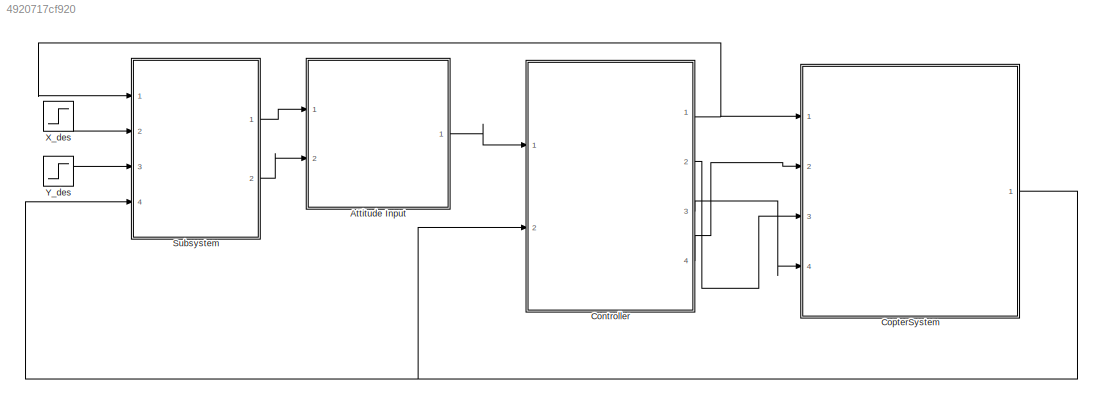
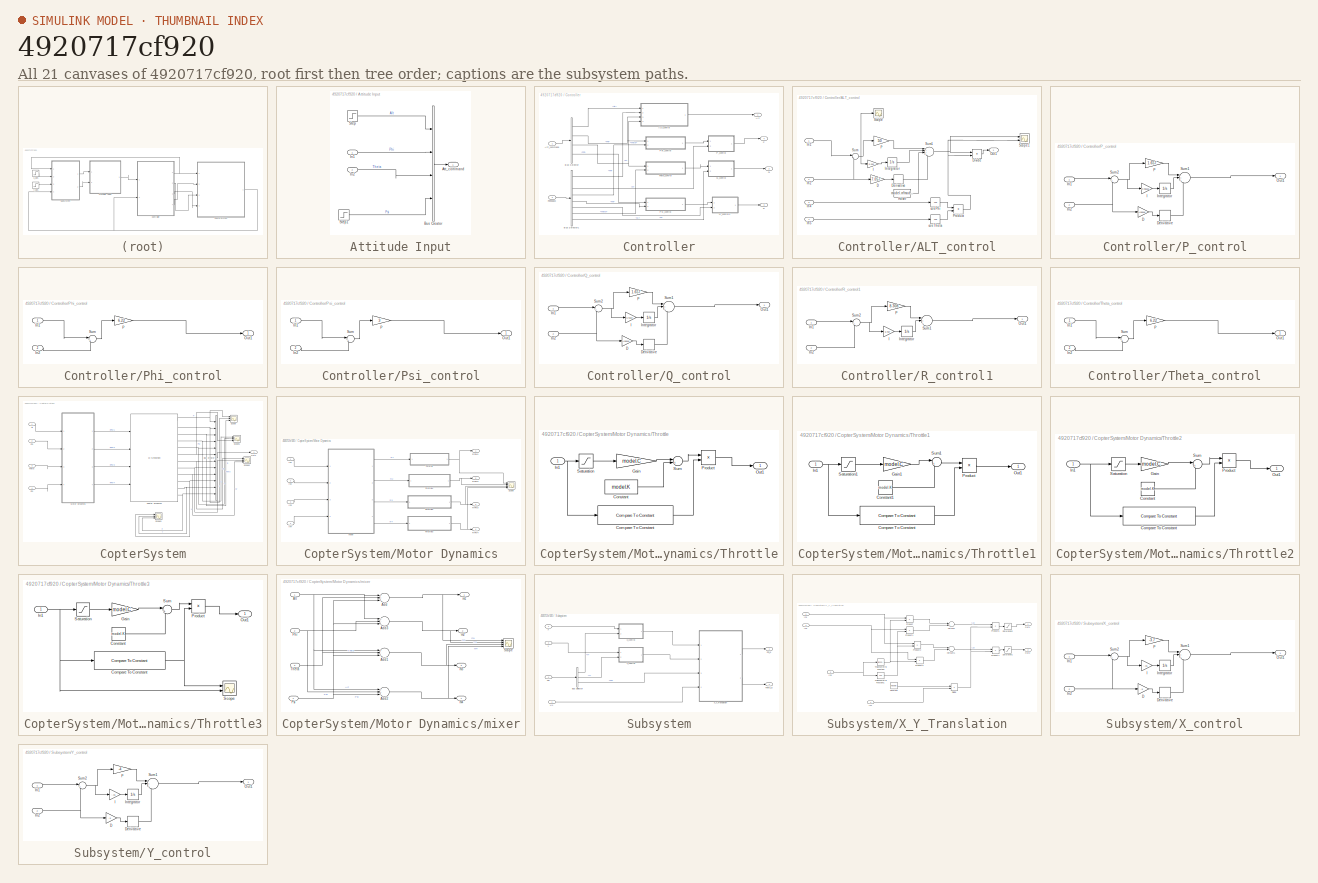
[diagram: thumbnail index - all 21 canvases of the model, root first then tree order]
MODEL slx_4920717cf920
KIND model
WORKSPACE source: MAT-file member
WORKSPACE handle: class17 (value not decoded)
BLOCK [SubSystem] Attitude Input
  FunctionWithSeparateData = off
  MaskHideContents = off
  MinAlgLoopOccurrences = off
  Opaque = off
  Ports = [2, 1]
  PropExecContextOutsideSubsystem = off
  RTWSystemCode = Auto
  RequestExecContextInheritance = off
BLOCK [Outport] Attitude Input/Att_command
  IconDisplay = Port number
BLOCK [BusCreator] Attitude Input/Bus Creator
  DisplayOption = bar
  Ports = [4, 1]
BLOCK [Inport] Attitude Input/In1
  IconDisplay = Port number
BLOCK [Inport] Attitude Input/In2
  IconDisplay = Port number
  Port = 2
BLOCK [Step] Attitude Input/Step
  After = 2.5
  Before = 2
  SampleTime = 0
  Time = 0
BLOCK [Step] Attitude Input/Step1
  After = 0
  SampleTime = 0
  Time = 0
BLOCK [SubSystem] Controller
  FunctionWithSeparateData = off
  MaskHideContents = off
  MinAlgLoopOccurrences = off
  Opaque = off
  Ports = [2, 4]
  PropExecContextOutsideSubsystem = off
  RTWSystemCode = Auto
  RequestExecContextInheritance = off
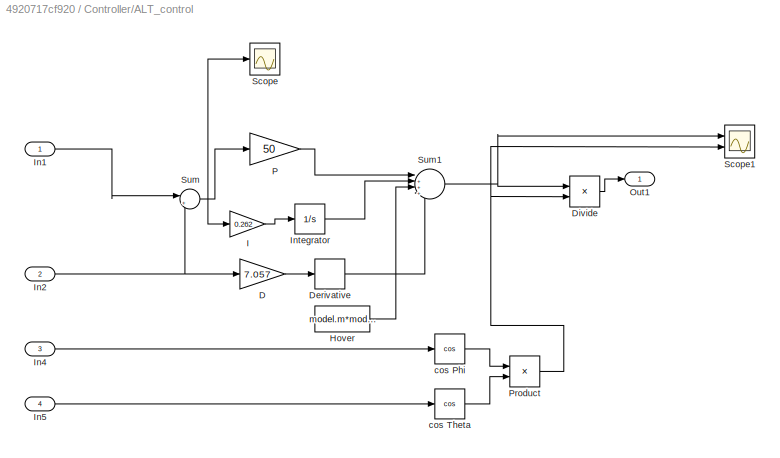
BLOCK [SubSystem] Controller/ALT_control
  FunctionWithSeparateData = off
  MaskHideContents = off
  MinAlgLoopOccurrences = off
  Opaque = off
  Ports = [4, 1]
  PropExecContextOutsideSubsystem = off
  RTWSystemCode = Auto
  RequestExecContextInheritance = off
BLOCK [Gain] Controller/ALT_control/D
  Gain = 7.057
  OutDataTypeStr = Inherit: Inherit via internal rule
  ParamDataTypeStr = Inherit: Inherit via internal rule
  SaturateOnIntegerOverflow = off
BLOCK [Derivative] Controller/ALT_control/Derivative
BLOCK [Product] Controller/ALT_control/Divide
  InputSameDT = off
  Inputs = */
  OutDataTypeStr = Inherit: Inherit via internal rule
  Ports = [2, 1]
  RndMeth = Floor
  SaturateOnIntegerOverflow = off
BLOCK [Constant] Controller/ALT_control/Hover
  Value = model.m*model.g
BLOCK [Gain] Controller/ALT_control/I
  Gain = 0.262
  OutDataTypeStr = Inherit: Inherit via internal rule
  ParamDataTypeStr = Inherit: Inherit via internal rule
  SaturateOnIntegerOverflow = off
BLOCK [Inport] Controller/ALT_control/In1
  IconDisplay = Port number
BLOCK [Inport] Controller/ALT_control/In2
  IconDisplay = Port number
  Port = 2
BLOCK [Inport] Controller/ALT_control/In4
  IconDisplay = Port number
  Port = 3
BLOCK [Inport] Controller/ALT_control/In5
  IconDisplay = Port number
  Port = 4
BLOCK [Integrator] Controller/ALT_control/Integrator
  LimitOutput = on
  LowerSaturationLimit = -1
  Ports = [1, 1]
  UpperSaturationLimit = 1
BLOCK [Outport] Controller/ALT_control/Out1
  IconDisplay = Port number
BLOCK [Gain] Controller/ALT_control/P
  Gain = 50
  OutDataTypeStr = Inherit: Inherit via internal rule
  ParamDataTypeStr = Inherit: Inherit via internal rule
  SaturateOnIntegerOverflow = off
BLOCK [Product] Controller/ALT_control/Product
  InputSameDT = off
  OutDataTypeStr = Inherit: Inherit via internal rule
  Ports = [2, 1]
  SaturateOnIntegerOverflow = off
BLOCK [Scope] Controller/ALT_control/Scope
  DataFormat = StructureWithTime
  Floating = off
  NumInputPorts = 1
  Ports = [1]
  SampleTime = 0
  SaveName = ScopeData6
  ShowLegends = off
  YMax = 1.2
  YMin = -0.1
BLOCK [Scope] Controller/ALT_control/Scope1
  DataFormat = StructureWithTime
  Floating = off
  NumInputPorts = 2
  Ports = [2]
  SampleTime = 0
  SaveName = ScopeData8
  ShowLegends = off
  YMax = 1.2~5
  YMin = -0.1~-5
BLOCK [Sum] Controller/ALT_control/Sum
  IconShape = round
  InputSameDT = off
  Inputs = |+-
  OutDataTypeStr = Inherit: Inherit via internal rule
  Ports = [2, 1]
  SaturateOnIntegerOverflow = off
BLOCK [Sum] Controller/ALT_control/Sum1
  IconShape = round
  InputSameDT = off
  Inputs = |+++-
  OutDataTypeStr = Inherit: Inherit via internal rule
  Ports = [4, 1]
  SaturateOnIntegerOverflow = off
BLOCK [Trigonometry] Controller/ALT_control/cos Phi
  Operator = cos
  Ports = [1, 1]
BLOCK [Trigonometry] Controller/ALT_control/cos Theta
  Operator = cos
  Ports = [1, 1]
BLOCK [Outport] Controller/Alt 
  IconDisplay = Port number
BLOCK [Inport] Controller/Att_command
  IconDisplay = Port number
BLOCK [BusSelector] Controller/Bus Selector
  OutputSignals = Alt,Phi,Theta,Psi
  Ports = [1, 4]
BLOCK [BusSelector] Controller/Bus Selector1
  OutputSignals = Z,W,P,Phi,Psi,R,Theta,Q
  Ports = [1, 8]
BLOCK [Inport] Controller/Feedback
  IconDisplay = Port number
  Port = 2
BLOCK [Outport] Controller/P 
  IconDisplay = Port number
  Port = 4
BLOCK [SubSystem] Controller/P_control
  FunctionWithSeparateData = off
  MaskHideContents = off
  MinAlgLoopOccurrences = off
  Opaque = off
  Ports = [2, 1]
  PropExecContextOutsideSubsystem = off
  RTWSystemCode = Auto
  RequestExecContextInheritance = off
BLOCK [Gain] Controller/P_control/D
  Gain = 0.03016
  OutDataTypeStr = Inherit: Inherit via internal rule
  ParamDataTypeStr = Inherit: Inherit via internal rule
  SaturateOnIntegerOverflow = off
BLOCK [Derivative] Controller/P_control/Derivative
BLOCK [Gain] Controller/P_control/I
  Gain = 0.06616
  OutDataTypeStr = Inherit: Inherit via internal rule
  ParamDataTypeStr = Inherit: Inherit via internal rule
  SaturateOnIntegerOverflow = off
BLOCK [Inport] Controller/P_control/In1
  IconDisplay = Port number
BLOCK [Inport] Controller/P_control/In2
  IconDisplay = Port number
  Port = 2
BLOCK [Integrator] Controller/P_control/Integrator
  LimitOutput = on
  LowerSaturationLimit = -1
  Ports = [1, 1]
  UpperSaturationLimit = 1
BLOCK [Outport] Controller/P_control/Out1
  IconDisplay = Port number
BLOCK [Gain] Controller/P_control/P
  Gain = 1.657
  OutDataTypeStr = Inherit: Inherit via internal rule
  ParamDataTypeStr = Inherit: Inherit via internal rule
  SaturateOnIntegerOverflow = off
BLOCK [Sum] Controller/P_control/Sum1
  IconShape = round
  InputSameDT = off
  Inputs = |++-
  OutDataTypeStr = Inherit: Inherit via internal rule
  Ports = [3, 1]
  SaturateOnIntegerOverflow = off
BLOCK [Sum] Controller/P_control/Sum2
  IconShape = round
  InputSameDT = off
  Inputs = |+-
  OutDataTypeStr = Inherit: Inherit via internal rule
  Ports = [2, 1]
  SaturateOnIntegerOverflow = off
BLOCK [SubSystem] Controller/Phi_control
  FunctionWithSeparateData = off
  MaskHideContents = off
  MinAlgLoopOccurrences = off
  Opaque = off
  Ports = [2, 1]
  PropExecContextOutsideSubsystem = off
  RTWSystemCode = Auto
  RequestExecContextInheritance = off
BLOCK [Inport] Controller/Phi_control/In1
  IconDisplay = Port number
BLOCK [Inport] Controller/Phi_control/In2
  IconDisplay = Port number
  Port = 2
BLOCK [Outport] Controller/Phi_control/Out1
  IconDisplay = Port number
BLOCK [Gain] Controller/Phi_control/P
  Gain = 6.22
  OutDataTypeStr = Inherit: Inherit via internal rule
  ParamDataTypeStr = Inherit: Inherit via internal rule
  SaturateOnIntegerOverflow = off
BLOCK [Sum] Controller/Phi_control/Sum
  IconShape = round
  InputSameDT = off
  Inputs = |+-
  OutDataTypeStr = Inherit: Inherit via internal rule
  Ports = [2, 1]
  SaturateOnIntegerOverflow = off
BLOCK [SubSystem] Controller/Psi_control
  FunctionWithSeparateData = off
  MaskHideContents = off
  MinAlgLoopOccurrences = off
  Opaque = off
  Ports = [2, 1]
  PropExecContextOutsideSubsystem = off
  RTWSystemCode = Auto
  RequestExecContextInheritance = off
BLOCK [Inport] Controller/Psi_control/In1
  IconDisplay = Port number
BLOCK [Inport] Controller/Psi_control/In2
  IconDisplay = Port number
  Port = 2
BLOCK [Outport] Controller/Psi_control/Out1
  IconDisplay = Port number
BLOCK [Gain] Controller/Psi_control/P
  Gain = 3
  OutDataTypeStr = Inherit: Inherit via internal rule
  ParamDataTypeStr = Inherit: Inherit via internal rule
  SaturateOnIntegerOverflow = off
BLOCK [Sum] Controller/Psi_control/Sum
  IconShape = round
  InputSameDT = off
  Inputs = |+-
  OutDataTypeStr = Inherit: Inherit via internal rule
  Ports = [2, 1]
  SaturateOnIntegerOverflow = off
BLOCK [Outport] Controller/Q
  IconDisplay = Port number
  Port = 2
BLOCK [SubSystem] Controller/Q_control
  FunctionWithSeparateData = off
  MaskHideContents = off
  MinAlgLoopOccurrences = off
  Opaque = off
  Ports = [2, 1]
  PropExecContextOutsideSubsystem = off
  RTWSystemCode = Auto
  RequestExecContextInheritance = off
BLOCK [Gain] Controller/Q_control/D
  Gain = 0.03016
  OutDataTypeStr = Inherit: Inherit via internal rule
  ParamDataTypeStr = Inherit: Inherit via internal rule
  SaturateOnIntegerOverflow = off
BLOCK [Derivative] Controller/Q_control/Derivative
BLOCK [Gain] Controller/Q_control/I
  Gain = 0.9154
  OutDataTypeStr = Inherit: Inherit via internal rule
  ParamDataTypeStr = Inherit: Inherit via internal rule
  SaturateOnIntegerOverflow = off
BLOCK [Inport] Controller/Q_control/In1
  IconDisplay = Port number
BLOCK [Inport] Controller/Q_control/In2
  IconDisplay = Port number
  Port = 2
BLOCK [Integrator] Controller/Q_control/Integrator
  LimitOutput = on
  LowerSaturationLimit = -1
  Ports = [1, 1]
  UpperSaturationLimit = 1
BLOCK [Outport] Controller/Q_control/Out1
  IconDisplay = Port number
BLOCK [Gain] Controller/Q_control/P
  Gain = 1.657
  OutDataTypeStr = Inherit: Inherit via internal rule
  ParamDataTypeStr = Inherit: Inherit via internal rule
  SaturateOnIntegerOverflow = off
BLOCK [Sum] Controller/Q_control/Sum1
  IconShape = round
  InputSameDT = off
  Inputs = |++-
  OutDataTypeStr = Inherit: Inherit via internal rule
  Ports = [3, 1]
  SaturateOnIntegerOverflow = off
BLOCK [Sum] Controller/Q_control/Sum2
  IconShape = round
  InputSameDT = off
  Inputs = |+-
  OutDataTypeStr = Inherit: Inherit via internal rule
  Ports = [2, 1]
  SaturateOnIntegerOverflow = off
BLOCK [Outport] Controller/R
  IconDisplay = Port number
  Port = 3
BLOCK [SubSystem] Controller/R_control1
  FunctionWithSeparateData = off
  MaskHideContents = off
  MinAlgLoopOccurrences = off
  Opaque = off
  Ports = [2, 1]
  PropExecContextOutsideSubsystem = off
  RTWSystemCode = Auto
  RequestExecContextInheritance = off
BLOCK [Gain] Controller/R_control1/I
  Gain = 3.457
  OutDataTypeStr = Inherit: Inherit via internal rule
  ParamDataTypeStr = Inherit: Inherit via internal rule
  SaturateOnIntegerOverflow = off
BLOCK [Inport] Controller/R_control1/In1
  IconDisplay = Port number
BLOCK [Inport] Controller/R_control1/In2
  IconDisplay = Port number
  Port = 2
BLOCK [Integrator] Controller/R_control1/Integrator
  LimitOutput = on
  LowerSaturationLimit = -1
  Ports = [1, 1]
  UpperSaturationLimit = 1
BLOCK [Outport] Controller/R_control1/Out1
  IconDisplay = Port number
BLOCK [Gain] Controller/R_control1/P
  Gain = 8.308
  OutDataTypeStr = Inherit: Inherit via internal rule
  ParamDataTypeStr = Inherit: Inherit via internal rule
  SaturateOnIntegerOverflow = off
BLOCK [Sum] Controller/R_control1/Sum1
  IconShape = round
  InputSameDT = off
  Inputs = |++-
  OutDataTypeStr = Inherit: Inherit via internal rule
  Ports = [3, 1]
  SaturateOnIntegerOverflow = off
BLOCK [Sum] Controller/R_control1/Sum2
  IconShape = round
  InputSameDT = off
  Inputs = |+-
  OutDataTypeStr = Inherit: Inherit via internal rule
  Ports = [2, 1]
  SaturateOnIntegerOverflow = off
BLOCK [SubSystem] Controller/Theta_control
  FunctionWithSeparateData = off
  MaskHideContents = off
  MinAlgLoopOccurrences = off
  Opaque = off
  Ports = [2, 1]
  PropExecContextOutsideSubsystem = off
  RTWSystemCode = Auto
  RequestExecContextInheritance = off
BLOCK [Inport] Controller/Theta_control/In1
  IconDisplay = Port number
BLOCK [Inport] Controller/Theta_control/In2
  IconDisplay = Port number
  Port = 2
BLOCK [Outport] Controller/Theta_control/Out1
  IconDisplay = Port number
BLOCK [Gain] Controller/Theta_control/P
  Gain = 6.22
  OutDataTypeStr = Inherit: Inherit via internal rule
  ParamDataTypeStr = Inherit: Inherit via internal rule
  SaturateOnIntegerOverflow = off
BLOCK [Sum] Controller/Theta_control/Sum
  IconShape = round
  InputSameDT = off
  Inputs = |+-
  OutDataTypeStr = Inherit: Inherit via internal rule
  Ports = [2, 1]
  SaturateOnIntegerOverflow = off
BLOCK [SubSystem] CopterSystem
  FunctionWithSeparateData = off
  MaskHideContents = off
  MinAlgLoopOccurrences = off
  Opaque = off
  Ports = [4, 1]
  PropExecContextOutsideSubsystem = off
  RTWSystemCode = Auto
  RequestExecContextInheritance = off
BLOCK [Inport] CopterSystem/Alt
  IconDisplay = Port number
BLOCK [BusCreator] CopterSystem/Bus Creator
  DisplayOption = bar
  Inputs = 12
  Ports = [12, 1]
BLOCK [M-S-Function] CopterSystem/Copter Dynamics
  FunctionName = copter_dynamics
  Parameters = model
  Ports = [4, 12]
BLOCK [SubSystem] CopterSystem/Motor Dynamics
  FunctionWithSeparateData = off
  MaskHideContents = off
  MinAlgLoopOccurrences = off
  Opaque = off
  Ports = [4, 4]
  PropExecContextOutsideSubsystem = off
  RTWSystemCode = Auto
  RequestExecContextInheritance = off
BLOCK [Inport] CopterSystem/Motor Dynamics/In1
  IconDisplay = Port number
BLOCK [Inport] CopterSystem/Motor Dynamics/In2
  IconDisplay = Port number
  Port = 2
BLOCK [Inport] CopterSystem/Motor Dynamics/In3
  IconDisplay = Port number
  Port = 3
BLOCK [Inport] CopterSystem/Motor Dynamics/In4
  IconDisplay = Port number
  Port = 4
BLOCK [Outport] CopterSystem/Motor Dynamics/RPM1
  IconDisplay = Port number
BLOCK [Outport] CopterSystem/Motor Dynamics/RPM2
  IconDisplay = Port number
  Port = 2
BLOCK [Outport] CopterSystem/Motor Dynamics/RPM3
  IconDisplay = Port number
  Port = 3
BLOCK [Outport] CopterSystem/Motor Dynamics/RPM4
  IconDisplay = Port number
  Port = 4
BLOCK [Scope] CopterSystem/Motor Dynamics/Scope
  DataFormat = StructureWithTime
  Floating = off
  NumInputPorts = 4
  Ports = [4]
  SampleTime = 0
  SaveName = ScopeData5
  ShowLegends = off
  YMax = 5250~5250~5250~5250
  YMin = 2500~2500~2500~2500
BLOCK [SubSystem] CopterSystem/Motor Dynamics/Throttle
  FunctionWithSeparateData = off
  MaskHideContents = off
  MinAlgLoopOccurrences = off
  Opaque = off
  Ports = [1, 1]
  PropExecContextOutsideSubsystem = off
  RTWSystemCode = Auto
  RequestExecContextInheritance = off
BLOCK [Reference] CopterSystem/Motor Dynamics/Throttle/Compare To Constant  REF=simulink/Logic and Bit
Operations/Compare
To Constant
  OutDataTypeStr = uint8
  Ports = [1, 1]
  SourceBlock = simulink/Logic and Bit\nOperations/Compare\nTo Constant
  SourceType = Compare To Constant
  ZeroCross = off
  const = model.minThrottle
  relop = >=
BLOCK [Constant] CopterSystem/Motor Dynamics/Throttle/Constant
  Value = model.K
BLOCK [Gain] CopterSystem/Motor Dynamics/Throttle/Gain
  Gain = model.C
  OutDataTypeStr = Inherit: Inherit via internal rule
  ParamDataTypeStr = Inherit: Inherit via internal rule
  SaturateOnIntegerOverflow = off
BLOCK [Inport] CopterSystem/Motor Dynamics/Throttle/In1
  IconDisplay = Port number
BLOCK [Outport] CopterSystem/Motor Dynamics/Throttle/Out1
  IconDisplay = Port number
BLOCK [Product] CopterSystem/Motor Dynamics/Throttle/Product
  InputSameDT = off
  OutDataTypeStr = Inherit: Inherit via internal rule
  Ports = [2, 1]
  RndMeth = Floor
  SaturateOnIntegerOverflow = off
BLOCK [Saturate] CopterSystem/Motor Dynamics/Throttle/Saturation
  InputPortMap = u0
  LowerLimit = 0
  Ports = [1, 1]
  UpperLimit = 40
BLOCK [Sum] CopterSystem/Motor Dynamics/Throttle/Sum
  IconShape = round
  InputSameDT = off
  Inputs = |++
  OutDataTypeStr = Inherit: Inherit via internal rule
  Ports = [2, 1]
  SaturateOnIntegerOverflow = off
BLOCK [SubSystem] CopterSystem/Motor Dynamics/Throttle1
  FunctionWithSeparateData = off
  MaskHideContents = off
  MinAlgLoopOccurrences = off
  Opaque = off
  Ports = [1, 1]
  PropExecContextOutsideSubsystem = off
  RTWSystemCode = Auto
  RequestExecContextInheritance = off
BLOCK [Reference] CopterSystem/Motor Dynamics/Throttle1/Compare To Constant  REF=simulink/Logic and Bit
Operations/Compare
To Constant
  OutDataTypeStr = uint8
  Ports = [1, 1]
  SourceBlock = simulink/Logic and Bit\nOperations/Compare\nTo Constant
  SourceType = Compare To Constant
  ZeroCross = off
  const = model.minThrottle
  relop = >=
BLOCK [Constant] CopterSystem/Motor Dynamics/Throttle1/Constant1
  Value = model.K
BLOCK [Gain] CopterSystem/Motor Dynamics/Throttle1/Gain1
  Gain = model.C
  OutDataTypeStr = Inherit: Inherit via internal rule
  ParamDataTypeStr = Inherit: Inherit via internal rule
  SaturateOnIntegerOverflow = off
BLOCK [Inport] CopterSystem/Motor Dynamics/Throttle1/In1
  IconDisplay = Port number
BLOCK [Outport] CopterSystem/Motor Dynamics/Throttle1/Out1
  IconDisplay = Port number
BLOCK [Product] CopterSystem/Motor Dynamics/Throttle1/Product
  InputSameDT = off
  OutDataTypeStr = Inherit: Inherit via internal rule
  Ports = [2, 1]
  RndMeth = Floor
  SaturateOnIntegerOverflow = off
BLOCK [Saturate] CopterSystem/Motor Dynamics/Throttle1/Saturation1
  InputPortMap = u0
  LowerLimit = 0
  Ports = [1, 1]
  UpperLimit = 40
BLOCK [Sum] CopterSystem/Motor Dynamics/Throttle1/Sum1
  IconShape = round
  InputSameDT = off
  Inputs = |++
  OutDataTypeStr = Inherit: Inherit via internal rule
  Ports = [2, 1]
  SaturateOnIntegerOverflow = off
BLOCK [SubSystem] CopterSystem/Motor Dynamics/Throttle2
  FunctionWithSeparateData = off
  MaskHideContents = off
  MinAlgLoopOccurrences = off
  Opaque = off
  Ports = [1, 1]
  PropExecContextOutsideSubsystem = off
  RTWSystemCode = Auto
  RequestExecContextInheritance = off
BLOCK [Reference] CopterSystem/Motor Dynamics/Throttle2/Compare To Constant  REF=simulink/Logic and Bit
Operations/Compare
To Constant
  OutDataTypeStr = uint8
  Ports = [1, 1]
  SourceBlock = simulink/Logic and Bit\nOperations/Compare\nTo Constant
  SourceType = Compare To Constant
  ZeroCross = off
  const = model.minThrottle
  relop = >=
BLOCK [Constant] CopterSystem/Motor Dynamics/Throttle2/Constant
  Value = model.K
BLOCK [Gain] CopterSystem/Motor Dynamics/Throttle2/Gain
  Gain = model.C
  OutDataTypeStr = Inherit: Inherit via internal rule
  ParamDataTypeStr = Inherit: Inherit via internal rule
  SaturateOnIntegerOverflow = off
BLOCK [Inport] CopterSystem/Motor Dynamics/Throttle2/In1
  IconDisplay = Port number
BLOCK [Outport] CopterSystem/Motor Dynamics/Throttle2/Out1
  IconDisplay = Port number
BLOCK [Product] CopterSystem/Motor Dynamics/Throttle2/Product
  InputSameDT = off
  OutDataTypeStr = Inherit: Inherit via internal rule
  Ports = [2, 1]
  RndMeth = Floor
  SaturateOnIntegerOverflow = off
BLOCK [Saturate] CopterSystem/Motor Dynamics/Throttle2/Saturation
  InputPortMap = u0
  LowerLimit = 0
  Ports = [1, 1]
  UpperLimit = 40
BLOCK [Sum] CopterSystem/Motor Dynamics/Throttle2/Sum
  IconShape = round
  InputSameDT = off
  Inputs = |++
  OutDataTypeStr = Inherit: Inherit via internal rule
  Ports = [2, 1]
  SaturateOnIntegerOverflow = off
BLOCK [SubSystem] CopterSystem/Motor Dynamics/Throttle3
  FunctionWithSeparateData = off
  MaskHideContents = off
  MinAlgLoopOccurrences = off
  Opaque = off
  Ports = [1, 1]
  PropExecContextOutsideSubsystem = off
  RTWSystemCode = Auto
  RequestExecContextInheritance = off
BLOCK [Reference] CopterSystem/Motor Dynamics/Throttle3/Compare To Constant  REF=simulink/Logic and Bit
Operations/Compare
To Constant
  OutDataTypeStr = uint8
  Ports = [1, 1]
  SourceBlock = simulink/Logic and Bit\nOperations/Compare\nTo Constant
  SourceType = Compare To Constant
  ZeroCross = off
  const = model.minThrottle
  relop = >=
BLOCK [Constant] CopterSystem/Motor Dynamics/Throttle3/Constant
  Value = model.K
BLOCK [Gain] CopterSystem/Motor Dynamics/Throttle3/Gain
  Gain = model.C
  OutDataTypeStr = Inherit: Inherit via internal rule
  ParamDataTypeStr = Inherit: Inherit via internal rule
  SaturateOnIntegerOverflow = off
BLOCK [Inport] CopterSystem/Motor Dynamics/Throttle3/In1
  IconDisplay = Port number
BLOCK [Outport] CopterSystem/Motor Dynamics/Throttle3/Out1
  IconDisplay = Port number
BLOCK [Product] CopterSystem/Motor Dynamics/Throttle3/Product
  InputSameDT = off
  OutDataTypeStr = Inherit: Inherit via internal rule
  Ports = [2, 1]
  RndMeth = Floor
  SaturateOnIntegerOverflow = off
BLOCK [Saturate] CopterSystem/Motor Dynamics/Throttle3/Saturation
  InputPortMap = u0
  LowerLimit = 0
  Ports = [1, 1]
  UpperLimit = 40
BLOCK [Scope] CopterSystem/Motor Dynamics/Throttle3/Scope
  DataFormat = StructureWithTime
  Floating = off
  NumInputPorts = 2
  Ports = [2]
  SampleTime = 0
  SaveName = ScopeData4
  ShowLegends = off
  YMax = 5~5
  YMin = -5~-5
BLOCK [Sum] CopterSystem/Motor Dynamics/Throttle3/Sum
  IconShape = round
  InputSameDT = off
  Inputs = |++
  OutDataTypeStr = Inherit: Inherit via internal rule
  Ports = [2, 1]
  SaturateOnIntegerOverflow = off
BLOCK [SubSystem] CopterSystem/Motor Dynamics/mixer
  FunctionWithSeparateData = off
  MaskHideContents = off
  MinAlgLoopOccurrences = off
  Opaque = off
  Ports = [4, 4]
  PropExecContextOutsideSubsystem = off
  RTWSystemCode = Auto
  RequestExecContextInheritance = off
BLOCK [Sum] CopterSystem/Motor Dynamics/mixer/Add
  InputSameDT = off
  Inputs = +++
  OutDataTypeStr = Inherit: Inherit via internal rule
  Ports = [3, 1]
  SaturateOnIntegerOverflow = off
BLOCK [Sum] CopterSystem/Motor Dynamics/mixer/Add1
  InputSameDT = off
  Inputs = +-+
  OutDataTypeStr = Inherit: Inherit via internal rule
  Ports = [3, 1]
  SaturateOnIntegerOverflow = off
BLOCK [Sum] CopterSystem/Motor Dynamics/mixer/Add2
  InputSameDT = off
  Inputs = ++-
  OutDataTypeStr = Inherit: Inherit via internal rule
  Ports = [3, 1]
  SaturateOnIntegerOverflow = off
BLOCK [Sum] CopterSystem/Motor Dynamics/mixer/Add3
  InputSameDT = off
  Inputs = +--
  OutDataTypeStr = Inherit: Inherit via internal rule
  Ports = [3, 1]
  SaturateOnIntegerOverflow = off
BLOCK [Inport] CopterSystem/Motor Dynamics/mixer/Alt
  IconDisplay = Port number
BLOCK [Inport] CopterSystem/Motor Dynamics/mixer/Phi
  IconDisplay = Port number
  Port = 2
BLOCK [Inport] CopterSystem/Motor Dynamics/mixer/Psi
  IconDisplay = Port number
  Port = 4
BLOCK [Scope] CopterSystem/Motor Dynamics/mixer/Scope
  DataFormat = StructureWithTime
  Floating = off
  NumInputPorts = 4
  Ports = [4]
  SampleTime = 0
  SaveName = ScopeData9
  ShowLegends = off
  YMax = 5~5~5~5
  YMin = -5~-5~-5~-5
BLOCK [Inport] CopterSystem/Motor Dynamics/mixer/Theta
  IconDisplay = Port number
  Port = 3
BLOCK [Outport] CopterSystem/Motor Dynamics/mixer/m1
  IconDisplay = Port number
BLOCK [Outport] CopterSystem/Motor Dynamics/mixer/m2
  IconDisplay = Port number
  Port = 2
BLOCK [Outport] CopterSystem/Motor Dynamics/mixer/m3
  IconDisplay = Port number
  Port = 3
BLOCK [Outport] CopterSystem/Motor Dynamics/mixer/m4
  IconDisplay = Port number
  Port = 4
BLOCK [Outport] CopterSystem/Out1
  IconDisplay = Port number
BLOCK [Inport] CopterSystem/Phi
  IconDisplay = Port number
  Port = 2
BLOCK [Inport] CopterSystem/Psi
  IconDisplay = Port number
  Port = 4
BLOCK [Scope] CopterSystem/Scope
  DataFormat = StructureWithTime
  Floating = off
  NumInputPorts = 3
  Ports = [3]
  SampleTime = 0
  ShowLegends = off
  YMax = 750~750~-11010
  YMin = -750~-750~-11050
BLOCK [Scope] CopterSystem/Scope1
  DataFormat = StructureWithTime
  Floating = off
  NumInputPorts = 3
  Ports = [3]
  SampleTime = 0
  SaveName = ScopeData1
  ShowLegends = off
  YMax = 0.07~0.35~-0.009
  YMin = -0.06~-0.35~-0.027
BLOCK [Scope] CopterSystem/Scope2
  DataFormat = StructureWithTime
  Floating = off
  NumInputPorts = 3
  Ports = [3]
  SampleTime = 0
  SaveName = ScopeData2
  ShowLegends = off
  YMax = 400~400~2700
  YMin = -400~-350~2630
BLOCK [Scope] CopterSystem/Scope3
  DataFormat = StructureWithTime
  Floating = off
  NumInputPorts = 3
  Ports = [3]
  SampleTime = 0
  SaveName = ScopeData3
  ShowLegends = off
  YMax = 1.0028~8.8e-07~2.50026
  YMin = 1.0018~7.3e-07~2.50025
BLOCK [Inport] CopterSystem/Theta
  IconDisplay = Port number
  Port = 3
BLOCK [SubSystem] Subsystem
  FunctionWithSeparateData = off
  MaskHideContents = off
  MinAlgLoopOccurrences = off
  Opaque = off
  Ports = [4, 2]
  PropExecContextOutsideSubsystem = off
  RTWSystemCode = Auto
  RequestExecContextInheritance = off
BLOCK [BusSelector] Subsystem/Bus Selector
  OutputSignals = X,Y,Psi
  Ports = [1, 3]
BLOCK [Outport] Subsystem/Phi_d
  IconDisplay = Port number
BLOCK [Inport] Subsystem/Psi
  IconDisplay = Port number
  Port = 4
BLOCK [Outport] Subsystem/Theta_d
  IconDisplay = Port number
  Port = 2
BLOCK [Inport] Subsystem/U1
  IconDisplay = Port number
BLOCK [Inport] Subsystem/X
  IconDisplay = Port number
  Port = 2
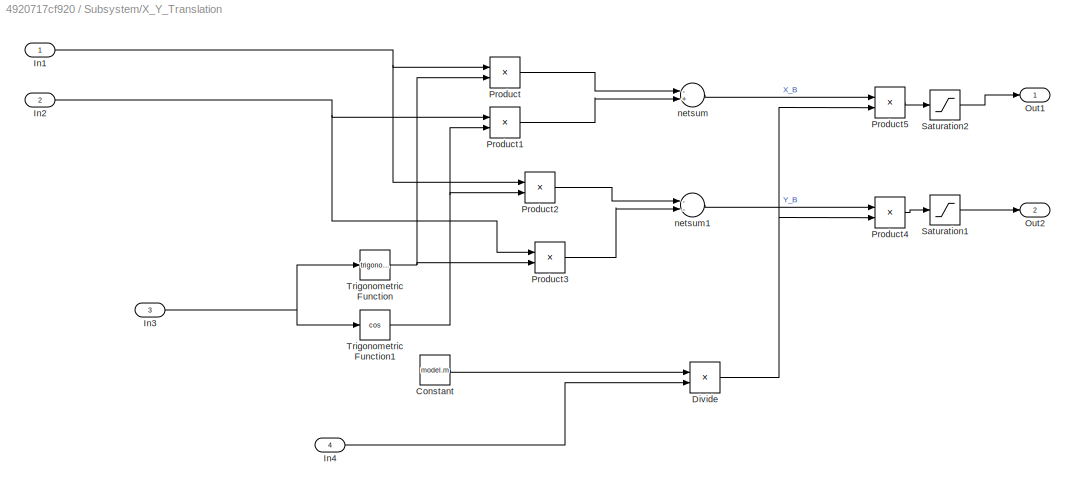
BLOCK [SubSystem] Subsystem/X_Y_Translation
  FunctionWithSeparateData = off
  MaskHideContents = off
  MinAlgLoopOccurrences = off
  Opaque = off
  Ports = [4, 2]
  PropExecContextOutsideSubsystem = off
  RTWSystemCode = Auto
  RequestExecContextInheritance = off
BLOCK [Constant] Subsystem/X_Y_Translation/Constant
  Value = model.m
BLOCK [Product] Subsystem/X_Y_Translation/Divide
  InputSameDT = off
  Inputs = */
  OutDataTypeStr = Inherit: Inherit via internal rule
  Ports = [2, 1]
  RndMeth = Floor
  SaturateOnIntegerOverflow = off
BLOCK [Inport] Subsystem/X_Y_Translation/In1
  IconDisplay = Port number
BLOCK [Inport] Subsystem/X_Y_Translation/In2
  IconDisplay = Port number
  Port = 2
BLOCK [Inport] Subsystem/X_Y_Translation/In3
  IconDisplay = Port number
  Port = 3
BLOCK [Inport] Subsystem/X_Y_Translation/In4
  IconDisplay = Port number
  Port = 4
BLOCK [Outport] Subsystem/X_Y_Translation/Out1
  IconDisplay = Port number
BLOCK [Outport] Subsystem/X_Y_Translation/Out2
  IconDisplay = Port number
  Port = 2
BLOCK [Product] Subsystem/X_Y_Translation/Product
  InputSameDT = off
  OutDataTypeStr = Inherit: Inherit via internal rule
  Ports = [2, 1]
  RndMeth = Floor
  SaturateOnIntegerOverflow = off
BLOCK [Product] Subsystem/X_Y_Translation/Product1
  InputSameDT = off
  OutDataTypeStr = Inherit: Inherit via internal rule
  Ports = [2, 1]
  RndMeth = Floor
  SaturateOnIntegerOverflow = off
BLOCK [Product] Subsystem/X_Y_Translation/Product2
  InputSameDT = off
  OutDataTypeStr = Inherit: Inherit via internal rule
  Ports = [2, 1]
  RndMeth = Floor
  SaturateOnIntegerOverflow = off
BLOCK [Product] Subsystem/X_Y_Translation/Product3
  InputSameDT = off
  OutDataTypeStr = Inherit: Inherit via internal rule
  Ports = [2, 1]
  RndMeth = Floor
  SaturateOnIntegerOverflow = off
BLOCK [Product] Subsystem/X_Y_Translation/Product4
  InputSameDT = off
  OutDataTypeStr = Inherit: Inherit via internal rule
  Ports = [2, 1]
  RndMeth = Floor
  SaturateOnIntegerOverflow = off
BLOCK [Product] Subsystem/X_Y_Translation/Product5
  InputSameDT = off
  OutDataTypeStr = Inherit: Inherit via internal rule
  Ports = [2, 1]
  RndMeth = Floor
  SaturateOnIntegerOverflow = off
BLOCK [Saturate] Subsystem/X_Y_Translation/Saturation1
  InputPortMap = u0
  LowerLimit = -30*pi/180
  Ports = [1, 1]
  UpperLimit = 30*pi/180
BLOCK [Saturate] Subsystem/X_Y_Translation/Saturation2
  InputPortMap = u0
  LowerLimit = -30*pi/180
  Ports = [1, 1]
  UpperLimit = 30*pi/180
BLOCK [Trigonometry] Subsystem/X_Y_Translation/Trigonometric Function
  Ports = [1, 1]
BLOCK [Trigonometry] Subsystem/X_Y_Translation/Trigonometric Function1
  Operator = cos
  Ports = [1, 1]
BLOCK [Sum] Subsystem/X_Y_Translation/netsum
  Inputs = -+
  Ports = [2, 1]
BLOCK [Sum] Subsystem/X_Y_Translation/netsum1
  Inputs = --
  Ports = [2, 1]
BLOCK [SubSystem] Subsystem/X_control
  FunctionWithSeparateData = off
  MaskHideContents = off
  MinAlgLoopOccurrences = off
  Opaque = off
  Ports = [2, 1]
  PropExecContextOutsideSubsystem = off
  RTWSystemCode = Auto
  RequestExecContextInheritance = off
BLOCK [Gain] Subsystem/X_control/D
  Gain = -3
  OutDataTypeStr = Inherit: Inherit via internal rule
  ParamDataTypeStr = Inherit: Inherit via internal rule
  SaturateOnIntegerOverflow = off
BLOCK [Derivative] Subsystem/X_control/Derivative
BLOCK [Gain] Subsystem/X_control/I
  Gain = -.01
  OutDataTypeStr = Inherit: Inherit via internal rule
  ParamDataTypeStr = Inherit: Inherit via internal rule
  SaturateOnIntegerOverflow = off
BLOCK [Inport] Subsystem/X_control/In1
  IconDisplay = Port number
BLOCK [Inport] Subsystem/X_control/In2
  IconDisplay = Port number
  Port = 2
BLOCK [Integrator] Subsystem/X_control/Integrator
  LimitOutput = on
  LowerSaturationLimit = -1
  Ports = [1, 1]
  UpperSaturationLimit = 1
BLOCK [Outport] Subsystem/X_control/Out1
  IconDisplay = Port number
BLOCK [Gain] Subsystem/X_control/P
  Gain = -3.7
  OutDataTypeStr = Inherit: Inherit via internal rule
  ParamDataTypeStr = Inherit: Inherit via internal rule
  SaturateOnIntegerOverflow = off
BLOCK [Sum] Subsystem/X_control/Sum1
  IconShape = round
  InputSameDT = off
  Inputs = |++-
  OutDataTypeStr = Inherit: Inherit via internal rule
  Ports = [3, 1]
  SaturateOnIntegerOverflow = off
BLOCK [Sum] Subsystem/X_control/Sum2
  IconShape = round
  InputSameDT = off
  Inputs = |+-
  OutDataTypeStr = Inherit: Inherit via internal rule
  Ports = [2, 1]
  SaturateOnIntegerOverflow = off
BLOCK [Inport] Subsystem/Y
  IconDisplay = Port number
  Port = 3
BLOCK [SubSystem] Subsystem/Y_control
  FunctionWithSeparateData = off
  MaskHideContents = off
  MinAlgLoopOccurrences = off
  Opaque = off
  Ports = [2, 1]
  PropExecContextOutsideSubsystem = off
  RTWSystemCode = Auto
  RequestExecContextInheritance = off
BLOCK [Gain] Subsystem/Y_control/D
  Gain = -3
  OutDataTypeStr = Inherit: Inherit via internal rule
  ParamDataTypeStr = Inherit: Inherit via internal rule
  SaturateOnIntegerOverflow = off
BLOCK [Derivative] Subsystem/Y_control/Derivative
BLOCK [Gain] Subsystem/Y_control/I
  Gain = -.01
  OutDataTypeStr = Inherit: Inherit via internal rule
  ParamDataTypeStr = Inherit: Inherit via internal rule
  SaturateOnIntegerOverflow = off
BLOCK [Inport] Subsystem/Y_control/In1
  IconDisplay = Port number
BLOCK [Inport] Subsystem/Y_control/In2
  IconDisplay = Port number
  Port = 2
BLOCK [Integrator] Subsystem/Y_control/Integrator
  LimitOutput = on
  LowerSaturationLimit = -1
  Ports = [1, 1]
  UpperSaturationLimit = 1
BLOCK [Outport] Subsystem/Y_control/Out1
  IconDisplay = Port number
BLOCK [Gain] Subsystem/Y_control/P
  Gain = -4
  OutDataTypeStr = Inherit: Inherit via internal rule
  ParamDataTypeStr = Inherit: Inherit via internal rule
  SaturateOnIntegerOverflow = off
BLOCK [Sum] Subsystem/Y_control/Sum1
  IconShape = round
  InputSameDT = off
  Inputs = |++-
  OutDataTypeStr = Inherit: Inherit via internal rule
  Ports = [3, 1]
  SaturateOnIntegerOverflow = off
BLOCK [Sum] Subsystem/Y_control/Sum2
  IconShape = round
  InputSameDT = off
  Inputs = |+-
  OutDataTypeStr = Inherit: Inherit via internal rule
  Ports = [2, 1]
  SaturateOnIntegerOverflow = off
BLOCK [Step] X_des
  SampleTime = 0
BLOCK [Step] Y_des
  After = .5
  SampleTime = 0
  Time = 3
LINE Attitude Input/Bus Creator:1 -> Attitude Input/Att_command:1
LINE Attitude Input/In1:1 -> Attitude Input/Bus Creator:2
LINE Attitude Input/In2:1 -> Attitude Input/Bus Creator:3
LINE Attitude Input/Step1:1 -> Attitude Input/Bus Creator:4
LINE Attitude Input/Step:1 -> Attitude Input/Bus Creator:1
LINE Attitude Input:1 -> Controller:1
LINE Controller/ALT_control/D:1 -> Controller/ALT_control/Derivative:1
LINE Controller/ALT_control/Derivative:1 -> Controller/ALT_control/Sum1:4
LINE Controller/ALT_control/Divide:1 -> Controller/ALT_control/Out1:1
LINE Controller/ALT_control/Hover:1 -> Controller/ALT_control/Sum1:3
LINE Controller/ALT_control/I:1 -> Controller/ALT_control/Integrator:1
LINE Controller/ALT_control/In1:1 -> Controller/ALT_control/Sum:1
NET Controller/ALT_control/In2:1 -> Controller/ALT_control/D:1, Controller/ALT_control/Sum:2
LINE Controller/ALT_control/In4:1 -> Controller/ALT_control/cos Phi:1
LINE Controller/ALT_control/In5:1 -> Controller/ALT_control/cos Theta:1
LINE Controller/ALT_control/Integrator:1 -> Controller/ALT_control/Sum1:2
LINE Controller/ALT_control/P:1 -> Controller/ALT_control/Sum1:1
NET Controller/ALT_control/Product:1 -> Controller/ALT_control/Divide:2, Controller/ALT_control/Scope1:2
NET Controller/ALT_control/Sum1:1 -> Controller/ALT_control/Divide:1, Controller/ALT_control/Scope1:1
NET Controller/ALT_control/Sum:1 -> Controller/ALT_control/I:1, Controller/ALT_control/P:1, Controller/ALT_control/Scope:1
LINE Controller/ALT_control/cos Phi:1 -> Controller/ALT_control/Product:1
LINE Controller/ALT_control/cos Theta:1 -> Controller/ALT_control/Product:2
LINE Controller/ALT_control:1 -> Controller/Alt :1
LINE Controller/Att_command:1 -> Controller/Bus Selector:1
LINE Controller/Bus Selector1:1 -> Controller/ALT_control:2
LINE Controller/Bus Selector1:3 -> Controller/P_control:2
LINE Controller/Bus Selector1:4 -> Controller/Phi_control:2
LINE Controller/Bus Selector1:5 -> Controller/Psi_control:2
LINE Controller/Bus Selector1:6 -> Controller/R_control1:2
LINE Controller/Bus Selector1:7 -> Controller/Theta_control:2
LINE Controller/Bus Selector1:8 -> Controller/Q_control:2
LINE Controller/Bus Selector:1 -> Controller/ALT_control:1
NET Controller/Bus Selector:2 -> Controller/ALT_control:3, Controller/Phi_control:1
NET Controller/Bus Selector:3 -> Controller/ALT_control:4, Controller/Theta_control:1
LINE Controller/Bus Selector:4 -> Controller/Psi_control:1
LINE Controller/Feedback:1 -> Controller/Bus Selector1:1
LINE Controller/P_control/D:1 -> Controller/P_control/Derivative:1
LINE Controller/P_control/Derivative:1 -> Controller/P_control/Sum1:3
LINE Controller/P_control/I:1 -> Controller/P_control/Integrator:1
LINE Controller/P_control/In1:1 -> Controller/P_control/Sum2:1
NET Controller/P_control/In2:1 -> Controller/P_control/D:1, Controller/P_control/Sum2:2
LINE Controller/P_control/Integrator:1 -> Controller/P_control/Sum1:2
LINE Controller/P_control/P:1 -> Controller/P_control/Sum1:1
LINE Controller/P_control/Sum1:1 -> Controller/P_control/Out1:1
NET Controller/P_control/Sum2:1 -> Controller/P_control/I:1, Controller/P_control/P:1
LINE Controller/P_control:1 -> Controller/P :1
LINE Controller/Phi_control/In1:1 -> Controller/Phi_control/Sum:1
LINE Controller/Phi_control/In2:1 -> Controller/Phi_control/Sum:2
LINE Controller/Phi_control/P:1 -> Controller/Phi_control/Out1:1
LINE Controller/Phi_control/Sum:1 -> Controller/Phi_control/P:1
LINE Controller/Phi_control:1 -> Controller/P_control:1
LINE Controller/Psi_control/In1:1 -> Controller/Psi_control/Sum:1
LINE Controller/Psi_control/In2:1 -> Controller/Psi_control/Sum:2
LINE Controller/Psi_control/P:1 -> Controller/Psi_control/Out1:1
LINE Controller/Psi_control/Sum:1 -> Controller/Psi_control/P:1
LINE Controller/Psi_control:1 -> Controller/R_control1:1
LINE Controller/Q_control/D:1 -> Controller/Q_control/Derivative:1
LINE Controller/Q_control/Derivative:1 -> Controller/Q_control/Sum1:3
LINE Controller/Q_control/I:1 -> Controller/Q_control/Integrator:1
LINE Controller/Q_control/In1:1 -> Controller/Q_control/Sum2:1
NET Controller/Q_control/In2:1 -> Controller/Q_control/D:1, Controller/Q_control/Sum2:2
LINE Controller/Q_control/Integrator:1 -> Controller/Q_control/Sum1:2
LINE Controller/Q_control/P:1 -> Controller/Q_control/Sum1:1
LINE Controller/Q_control/Sum1:1 -> Controller/Q_control/Out1:1
NET Controller/Q_control/Sum2:1 -> Controller/Q_control/I:1, Controller/Q_control/P:1
LINE Controller/Q_control:1 -> Controller/Q:1
LINE Controller/R_control1/I:1 -> Controller/R_control1/Integrator:1
LINE Controller/R_control1/In1:1 -> Controller/R_control1/Sum2:1
LINE Controller/R_control1/In2:1 -> Controller/R_control1/Sum2:2
LINE Controller/R_control1/Integrator:1 -> Controller/R_control1/Sum1:2
LINE Controller/R_control1/P:1 -> Controller/R_control1/Sum1:1
LINE Controller/R_control1/Sum1:1 -> Controller/R_control1/Out1:1
NET Controller/R_control1/Sum2:1 -> Controller/R_control1/I:1, Controller/R_control1/P:1
LINE Controller/R_control1:1 -> Controller/R:1
LINE Controller/Theta_control/In1:1 -> Controller/Theta_control/Sum:1
LINE Controller/Theta_control/In2:1 -> Controller/Theta_control/Sum:2
LINE Controller/Theta_control/P:1 -> Controller/Theta_control/Out1:1
LINE Controller/Theta_control/Sum:1 -> Controller/Theta_control/P:1
LINE Controller/Theta_control:1 -> Controller/Q_control:1
NET Controller:1 -> CopterSystem:1, Subsystem:1
LINE Controller:2 -> CopterSystem:3
LINE Controller:3 -> CopterSystem:4
LINE Controller:4 -> CopterSystem:2
LINE CopterSystem/Alt:1 -> CopterSystem/Motor Dynamics:1
LINE CopterSystem/Bus Creator:1 -> CopterSystem/Out1:1
NET CopterSystem/Copter Dynamics:1 -> CopterSystem/Bus Creator:1, CopterSystem/Scope:1
NET CopterSystem/Copter Dynamics:10 -> CopterSystem/Bus Creator:10, CopterSystem/Scope3:1
NET CopterSystem/Copter Dynamics:11 -> CopterSystem/Bus Creator:11, CopterSystem/Scope3:2
NET CopterSystem/Copter Dynamics:12 -> CopterSystem/Bus Creator:12, CopterSystem/Scope3:3
NET CopterSystem/Copter Dynamics:2 -> CopterSystem/Bus Creator:2, CopterSystem/Scope:2
NET CopterSystem/Copter Dynamics:3 -> CopterSystem/Bus Creator:3, CopterSystem/Scope:3
NET CopterSystem/Copter Dynamics:4 -> CopterSystem/Bus Creator:4, CopterSystem/Scope1:1
NET CopterSystem/Copter Dynamics:5 -> CopterSystem/Bus Creator:5, CopterSystem/Scope1:2
NET CopterSystem/Copter Dynamics:6 -> CopterSystem/Bus Creator:6, CopterSystem/Scope1:3
NET CopterSystem/Copter Dynamics:7 -> CopterSystem/Bus Creator:7, CopterSystem/Scope2:1
NET CopterSystem/Copter Dynamics:8 -> CopterSystem/Bus Creator:8, CopterSystem/Scope2:2
NET CopterSystem/Copter Dynamics:9 -> CopterSystem/Bus Creator:9, CopterSystem/Scope2:3
LINE CopterSystem/Motor Dynamics/In1:1 -> CopterSystem/Motor Dynamics/mixer:1
LINE CopterSystem/Motor Dynamics/In2:1 -> CopterSystem/Motor Dynamics/mixer:2
LINE CopterSystem/Motor Dynamics/In3:1 -> CopterSystem/Motor Dynamics/mixer:3
LINE CopterSystem/Motor Dynamics/In4:1 -> CopterSystem/Motor Dynamics/mixer:4
LINE CopterSystem/Motor Dynamics/Throttle/Compare To Constant:1 -> CopterSystem/Motor Dynamics/Throttle/Product:2
LINE CopterSystem/Motor Dynamics/Throttle/Constant:1 -> CopterSystem/Motor Dynamics/Throttle/Sum:2
LINE CopterSystem/Motor Dynamics/Throttle/Gain:1 -> CopterSystem/Motor Dynamics/Throttle/Sum:1
NET CopterSystem/Motor Dynamics/Throttle/In1:1 -> CopterSystem/Motor Dynamics/Throttle/Compare To Constant:1, CopterSystem/Motor Dynamics/Throttle/Saturation:1
LINE CopterSystem/Motor Dynamics/Throttle/Product:1 -> CopterSystem/Motor Dynamics/Throttle/Out1:1
LINE CopterSystem/Motor Dynamics/Throttle/Saturation:1 -> CopterSystem/Motor Dynamics/Throttle/Gain:1
LINE CopterSystem/Motor Dynamics/Throttle/Sum:1 -> CopterSystem/Motor Dynamics/Throttle/Product:1
LINE CopterSystem/Motor Dynamics/Throttle1/Compare To Constant:1 -> CopterSystem/Motor Dynamics/Throttle1/Product:2
LINE CopterSystem/Motor Dynamics/Throttle1/Constant1:1 -> CopterSystem/Motor Dynamics/Throttle1/Sum1:2
LINE CopterSystem/Motor Dynamics/Throttle1/Gain1:1 -> CopterSystem/Motor Dynamics/Throttle1/Sum1:1
NET CopterSystem/Motor Dynamics/Throttle1/In1:1 -> CopterSystem/Motor Dynamics/Throttle1/Compare To Constant:1, CopterSystem/Motor Dynamics/Throttle1/Saturation1:1
LINE CopterSystem/Motor Dynamics/Throttle1/Product:1 -> CopterSystem/Motor Dynamics/Throttle1/Out1:1
LINE CopterSystem/Motor Dynamics/Throttle1/Saturation1:1 -> CopterSystem/Motor Dynamics/Throttle1/Gain1:1
LINE CopterSystem/Motor Dynamics/Throttle1/Sum1:1 -> CopterSystem/Motor Dynamics/Throttle1/Product:1
NET CopterSystem/Motor Dynamics/Throttle1:1 -> CopterSystem/Motor Dynamics/RPM2:1, CopterSystem/Motor Dynamics/Scope:2
LINE CopterSystem/Motor Dynamics/Throttle2/Compare To Constant:1 -> CopterSystem/Motor Dynamics/Throttle2/Product:2
LINE CopterSystem/Motor Dynamics/Throttle2/Constant:1 -> CopterSystem/Motor Dynamics/Throttle2/Sum:2
LINE CopterSystem/Motor Dynamics/Throttle2/Gain:1 -> CopterSystem/Motor Dynamics/Throttle2/Sum:1
NET CopterSystem/Motor Dynamics/Throttle2/In1:1 -> CopterSystem/Motor Dynamics/Throttle2/Compare To Constant:1, CopterSystem/Motor Dynamics/Throttle2/Saturation:1
LINE CopterSystem/Motor Dynamics/Throttle2/Product:1 -> CopterSystem/Motor Dynamics/Throttle2/Out1:1
LINE CopterSystem/Motor Dynamics/Throttle2/Saturation:1 -> CopterSystem/Motor Dynamics/Throttle2/Gain:1
LINE CopterSystem/Motor Dynamics/Throttle2/Sum:1 -> CopterSystem/Motor Dynamics/Throttle2/Product:1
NET CopterSystem/Motor Dynamics/Throttle2:1 -> CopterSystem/Motor Dynamics/RPM3:1, CopterSystem/Motor Dynamics/Scope:3
NET CopterSystem/Motor Dynamics/Throttle3/Compare To Constant:1 -> CopterSystem/Motor Dynamics/Throttle3/Product:2, CopterSystem/Motor Dynamics/Throttle3/Scope:1
LINE CopterSystem/Motor Dynamics/Throttle3/Constant:1 -> CopterSystem/Motor Dynamics/Throttle3/Sum:2
LINE CopterSystem/Motor Dynamics/Throttle3/Gain:1 -> CopterSystem/Motor Dynamics/Throttle3/Sum:1
NET CopterSystem/Motor Dynamics/Throttle3/In1:1 -> CopterSystem/Motor Dynamics/Throttle3/Compare To Constant:1, CopterSystem/Motor Dynamics/Throttle3/Saturation:1, CopterSystem/Motor Dynamics/Throttle3/Scope:2
LINE CopterSystem/Motor Dynamics/Throttle3/Product:1 -> CopterSystem/Motor Dynamics/Throttle3/Out1:1
LINE CopterSystem/Motor Dynamics/Throttle3/Saturation:1 -> CopterSystem/Motor Dynamics/Throttle3/Gain:1
LINE CopterSystem/Motor Dynamics/Throttle3/Sum:1 -> CopterSystem/Motor Dynamics/Throttle3/Product:1
NET CopterSystem/Motor Dynamics/Throttle3:1 -> CopterSystem/Motor Dynamics/RPM4:1, CopterSystem/Motor Dynamics/Scope:4
NET CopterSystem/Motor Dynamics/Throttle:1 -> CopterSystem/Motor Dynamics/RPM1:1, CopterSystem/Motor Dynamics/Scope:1
NET CopterSystem/Motor Dynamics/mixer/Add1:1 -> CopterSystem/Motor Dynamics/mixer/Scope:3, CopterSystem/Motor Dynamics/mixer/m3:1
NET CopterSystem/Motor Dynamics/mixer/Add2:1 -> CopterSystem/Motor Dynamics/mixer/Scope:4, CopterSystem/Motor Dynamics/mixer/m4:1
NET CopterSystem/Motor Dynamics/mixer/Add3:1 -> CopterSystem/Motor Dynamics/mixer/Scope:2, CopterSystem/Motor Dynamics/mixer/m2:1
NET CopterSystem/Motor Dynamics/mixer/Add:1 -> CopterSystem/Motor Dynamics/mixer/Scope:1, CopterSystem/Motor Dynamics/mixer/m1:1
NET CopterSystem/Motor Dynamics/mixer/Alt:1 -> CopterSystem/Motor Dynamics/mixer/Add1:1, CopterSystem/Motor Dynamics/mixer/Add2:1, CopterSystem/Motor Dynamics/mixer/Add3:1, CopterSystem/Motor Dynamics/mixer/Add:1
NET CopterSystem/Motor Dynamics/mixer/Phi:1 -> CopterSystem/Motor Dynamics/mixer/Add2:2, CopterSystem/Motor Dynamics/mixer/Add3:2
NET CopterSystem/Motor Dynamics/mixer/Psi:1 -> CopterSystem/Motor Dynamics/mixer/Add1:3, CopterSystem/Motor Dynamics/mixer/Add2:3, CopterSystem/Motor Dynamics/mixer/Add3:3, CopterSystem/Motor Dynamics/mixer/Add:3
NET CopterSystem/Motor Dynamics/mixer/Theta:1 -> CopterSystem/Motor Dynamics/mixer/Add1:2, CopterSystem/Motor Dynamics/mixer/Add:2
LINE CopterSystem/Motor Dynamics/mixer:1 -> CopterSystem/Motor Dynamics/Throttle:1
LINE CopterSystem/Motor Dynamics/mixer:2 -> CopterSystem/Motor Dynamics/Throttle1:1
LINE CopterSystem/Motor Dynamics/mixer:3 -> CopterSystem/Motor Dynamics/Throttle2:1
LINE CopterSystem/Motor Dynamics/mixer:4 -> CopterSystem/Motor Dynamics/Throttle3:1
LINE CopterSystem/Motor Dynamics:1 -> CopterSystem/Copter Dynamics:1
LINE CopterSystem/Motor Dynamics:2 -> CopterSystem/Copter Dynamics:2
LINE CopterSystem/Motor Dynamics:3 -> CopterSystem/Copter Dynamics:3
LINE CopterSystem/Motor Dynamics:4 -> CopterSystem/Copter Dynamics:4
LINE CopterSystem/Phi:1 -> CopterSystem/Motor Dynamics:2
LINE CopterSystem/Psi:1 -> CopterSystem/Motor Dynamics:4
LINE CopterSystem/Theta:1 -> CopterSystem/Motor Dynamics:3
NET CopterSystem:1 -> Controller:2, Subsystem:4
LINE Subsystem/Bus Selector:1 -> Subsystem/X_control:2
LINE Subsystem/Bus Selector:2 -> Subsystem/Y_control:2
LINE Subsystem/Bus Selector:3 -> Subsystem/X_Y_Translation:3
LINE Subsystem/Psi:1 -> Subsystem/Bus Selector:1
LINE Subsystem/U1:1 -> Subsystem/X_Y_Translation:4
LINE Subsystem/X:1 -> Subsystem/X_control:1
LINE Subsystem/X_Y_Translation/Constant:1 -> Subsystem/X_Y_Translation/Divide:1
NET Subsystem/X_Y_Translation/Divide:1 -> Subsystem/X_Y_Translation/Product4:2, Subsystem/X_Y_Translation/Product5:2
NET Subsystem/X_Y_Translation/In1:1 -> Subsystem/X_Y_Translation/Product2:1, Subsystem/X_Y_Translation/Product:1
NET Subsystem/X_Y_Translation/In2:1 -> Subsystem/X_Y_Translation/Product1:1, Subsystem/X_Y_Translation/Product3:1
NET Subsystem/X_Y_Translation/In3:1 -> Subsystem/X_Y_Translation/Trigonometric Function1:1, Subsystem/X_Y_Translation/Trigonometric Function:1
LINE Subsystem/X_Y_Translation/In4:1 -> Subsystem/X_Y_Translation/Divide:2
LINE Subsystem/X_Y_Translation/Product1:1 -> Subsystem/X_Y_Translation/netsum:2
LINE Subsystem/X_Y_Translation/Product2:1 -> Subsystem/X_Y_Translation/netsum1:1
LINE Subsystem/X_Y_Translation/Product3:1 -> Subsystem/X_Y_Translation/netsum1:2
LINE Subsystem/X_Y_Translation/Product4:1 -> Subsystem/X_Y_Translation/Saturation1:1
LINE Subsystem/X_Y_Translation/Product5:1 -> Subsystem/X_Y_Translation/Saturation2:1
LINE Subsystem/X_Y_Translation/Product:1 -> Subsystem/X_Y_Translation/netsum:1
LINE Subsystem/X_Y_Translation/Saturation1:1 -> Subsystem/X_Y_Translation/Out2:1
LINE Subsystem/X_Y_Translation/Saturation2:1 -> Subsystem/X_Y_Translation/Out1:1
NET Subsystem/X_Y_Translation/Trigonometric Function1:1 -> Subsystem/X_Y_Translation/Product1:2, Subsystem/X_Y_Translation/Product2:2
NET Subsystem/X_Y_Translation/Trigonometric Function:1 -> Subsystem/X_Y_Translation/Product3:2, Subsystem/X_Y_Translation/Product:2
LINE Subsystem/X_Y_Translation/netsum1:1 -> Subsystem/X_Y_Translation/Product4:1
LINE Subsystem/X_Y_Translation/netsum:1 -> Subsystem/X_Y_Translation/Product5:1
LINE Subsystem/X_Y_Translation:1 -> Subsystem/Phi_d:1
LINE Subsystem/X_Y_Translation:2 -> Subsystem/Theta_d:1
LINE Subsystem/X_control/D:1 -> Subsystem/X_control/Derivative:1
LINE Subsystem/X_control/Derivative:1 -> Subsystem/X_control/Sum1:3
LINE Subsystem/X_control/I:1 -> Subsystem/X_control/Integrator:1
LINE Subsystem/X_control/In1:1 -> Subsystem/X_control/Sum2:1
NET Subsystem/X_control/In2:1 -> Subsystem/X_control/D:1, Subsystem/X_control/Sum2:2
LINE Subsystem/X_control/Integrator:1 -> Subsystem/X_control/Sum1:2
LINE Subsystem/X_control/P:1 -> Subsystem/X_control/Sum1:1
LINE Subsystem/X_control/Sum1:1 -> Subsystem/X_control/Out1:1
NET Subsystem/X_control/Sum2:1 -> Subsystem/X_control/I:1, Subsystem/X_control/P:1
LINE Subsystem/X_control:1 -> Subsystem/X_Y_Translation:1
LINE Subsystem/Y:1 -> Subsystem/Y_control:1
LINE Subsystem/Y_control/D:1 -> Subsystem/Y_control/Derivative:1
LINE Subsystem/Y_control/Derivative:1 -> Subsystem/Y_control/Sum1:3
LINE Subsystem/Y_control/I:1 -> Subsystem/Y_control/Integrator:1
LINE Subsystem/Y_control/In1:1 -> Subsystem/Y_control/Sum2:1
NET Subsystem/Y_control/In2:1 -> Subsystem/Y_control/D:1, Subsystem/Y_control/Sum2:2
LINE Subsystem/Y_control/Integrator:1 -> Subsystem/Y_control/Sum1:2
LINE Subsystem/Y_control/P:1 -> Subsystem/Y_control/Sum1:1
LINE Subsystem/Y_control/Sum1:1 -> Subsystem/Y_control/Out1:1
NET Subsystem/Y_control/Sum2:1 -> Subsystem/Y_control/I:1, Subsystem/Y_control/P:1
LINE Subsystem/Y_control:1 -> Subsystem/X_Y_Translation:2
LINE Subsystem:1 -> Attitude Input:1
LINE Subsystem:2 -> Attitude Input:2
LINE X_des:1 -> Subsystem:2
LINE Y_des:1 -> Subsystem:3
note: NET lines group one-source signal fan-out (src -> all destinations, sorted); 1:1 wires keep LINE
